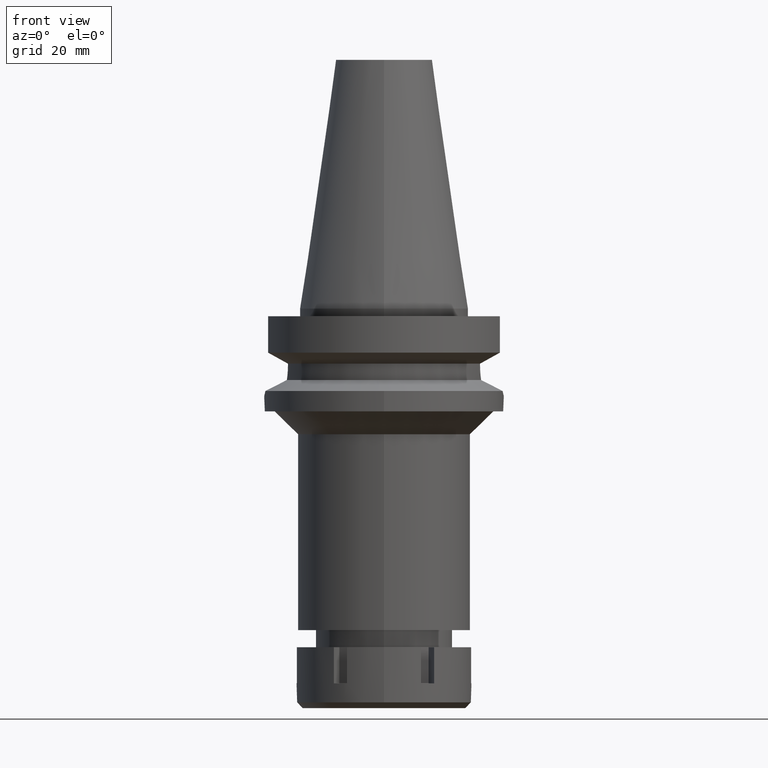
[diagram: clean part render]
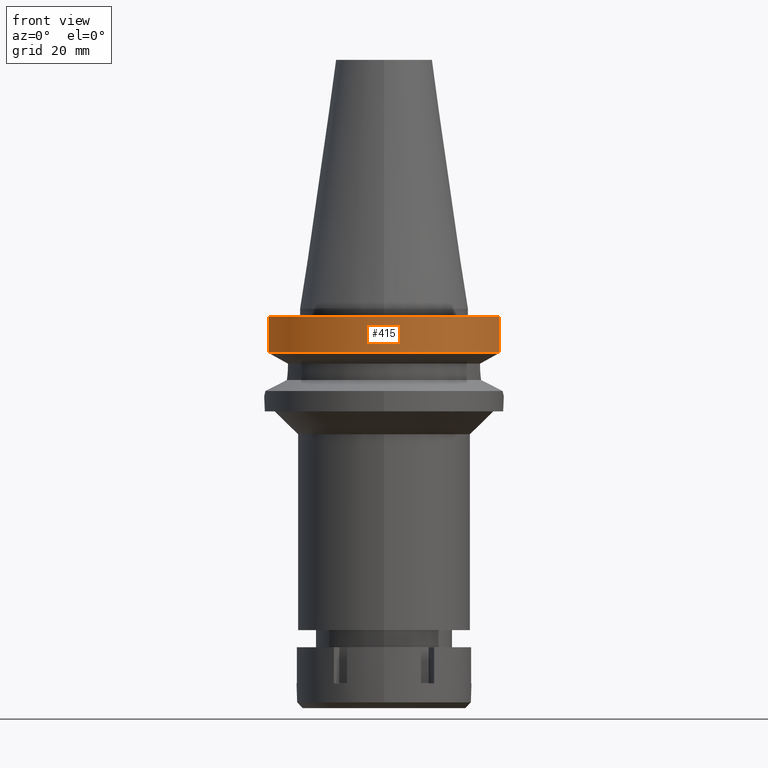
[diagram: same view with one face highlighted and labeled with its STEP entity id]
A machine part, front view. The second image highlights one B-rep face of the part: STEP entity #415.
In plain terms, the highlighted cylindrical surface (partial cylindrical patch) has radius 31.5 mm, axis along (0, 0, -1).
Its self-contained STEP definition (entity closure, byte-faithful):
#21 = VERTEX_POINT ( 'NONE', #1238 ) ;
#415 = ADVANCED_FACE ( 'NONE', ( #1789 ), #1465, .T. ) ;
#460 = EDGE_CURVE ( 'NONE', #1214, #2730, #2681, .T. ) ;
#604 = ORIENTED_EDGE ( 'NONE', *, *, #1184, .F. ) ;
#626 = DIRECTION ( 'NONE',  ( 0.0000000000000000000, -1.000000000000000000, 0.0000000000000000000 ) ) ;
#776 = CARTESIAN_POINT ( 'NONE',  ( 0.0000000000000000000, 1.065333950388000029E-14, -11.56550565266999975 ) ) ;
#915 = DIRECTION ( 'NONE',  ( 1.996345552879989058E-08, -7.552417792921957675E-08, 0.9999999999999968914 ) ) ;
#1103 = DIRECTION ( 'NONE',  ( -1.145559200540999260E-07, -4.333768744435997535E-07, -0.9999999999998995248 ) ) ;
#1155 = ORIENTED_EDGE ( 'NONE', *, *, #3600, .T. ) ;
#1169 = CARTESIAN_POINT ( 'NONE',  ( 0.0000000000000000000, 2.125007125879999817E-14, -2.000000000000000000 ) ) ;
#1184 = EDGE_CURVE ( 'NONE', #1214, #2485, #3329, .T. ) ;
#1214 = VERTEX_POINT ( 'NONE', #3045 ) ;
#1238 = CARTESIAN_POINT ( 'NONE',  ( -30.45402291374999848, -8.049999277572000622, -11.56551215941999899 ) ) ;
#1465 = CYLINDRICAL_SURFACE ( 'NONE', #2147, 31.50000000000000000 ) ;
#1615 = DIRECTION ( 'NONE',  ( 0.0000000000000000000, -1.000000000000000000, 0.0000000000000000000 ) ) ;
#1642 = CARTESIAN_POINT ( 'NONE',  ( -30.45402272279000044, -8.050000000000000711, -2.000000000000000000 ) ) ;
#1659 = AXIS2_PLACEMENT_3D ( 'NONE', #776, #2443, #1615 ) ;
#1703 = VECTOR ( 'NONE', #915, 1000.000000000000227 ) ;
#1750 = DIRECTION ( 'NONE',  ( 0.0000000000000000000, -1.000000000000000000, 0.0000000000000000000 ) ) ;
#1753 = AXIS2_PLACEMENT_3D ( 'NONE', #1169, #3432, #626 ) ;
#1789 = FACE_OUTER_BOUND ( 'NONE', #3341, .T. ) ;
#2006 = DIRECTION ( 'NONE',  ( 0.0000000000000000000, 0.0000000000000000000, -1.000000000000000000 ) ) ;
#2038 = LINE ( 'NONE', #3427, #1703 ) ;
#2147 = AXIS2_PLACEMENT_3D ( 'NONE', #3407, #2006, #1750 ) ;
#2162 = CARTESIAN_POINT ( 'NONE',  ( 30.45402272279000044, -8.049999999999000622, -11.56550565266999975 ) ) ;
#2336 = VECTOR ( 'NONE', #1103, 1000.000000000000114 ) ;
#2352 = CIRCLE ( 'NONE', #1659, 31.50000000000000000 ) ;
#2354 = EDGE_CURVE ( 'NONE', #21, #2730, #2038, .T. ) ;
#2443 = DIRECTION ( 'NONE',  ( 0.0000000000000000000, 0.0000000000000000000, 1.000000000000000000 ) ) ;
#2485 = VERTEX_POINT ( 'NONE', #2162 ) ;
#2575 = ORIENTED_EDGE ( 'NONE', *, *, #2354, .F. ) ;
#2681 = CIRCLE ( 'NONE', #1753, 31.50000000000000000 ) ;
#2730 = VERTEX_POINT ( 'NONE', #1642 ) ;
#2994 = CARTESIAN_POINT ( 'NONE',  ( 30.45402272279000044, -8.050000000000000711, -2.000000000000000000 ) ) ;
#3019 = ORIENTED_EDGE ( 'NONE', *, *, #460, .T. ) ;
#3045 = CARTESIAN_POINT ( 'NONE',  ( 30.45402272279000044, -8.050000000000000711, -2.000000000000000000 ) ) ;
#3329 = LINE ( 'NONE', #2994, #2336 ) ;
#3341 = EDGE_LOOP ( 'NONE', ( #2575, #1155, #604, #3019 ) ) ;
#3407 = CARTESIAN_POINT ( 'NONE',  ( 0.0000000000000000000, 2.125007125879999817E-14, 73.51999999999999602 ) ) ;
#3427 = CARTESIAN_POINT ( 'NONE',  ( -30.45402291374999848, -8.049999277572000622, -11.56551215941999899 ) ) ;
#3432 = DIRECTION ( 'NONE',  ( 0.0000000000000000000, 0.0000000000000000000, -1.000000000000000000 ) ) ;
#3600 = EDGE_CURVE ( 'NONE', #21, #2485, #2352, .T. ) ;